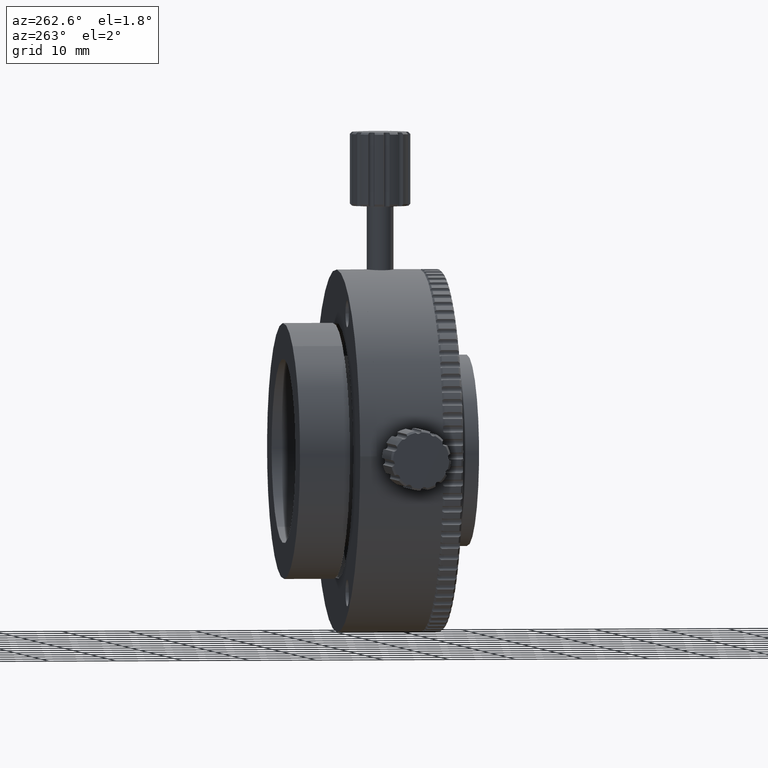
[diagram: clean part render]
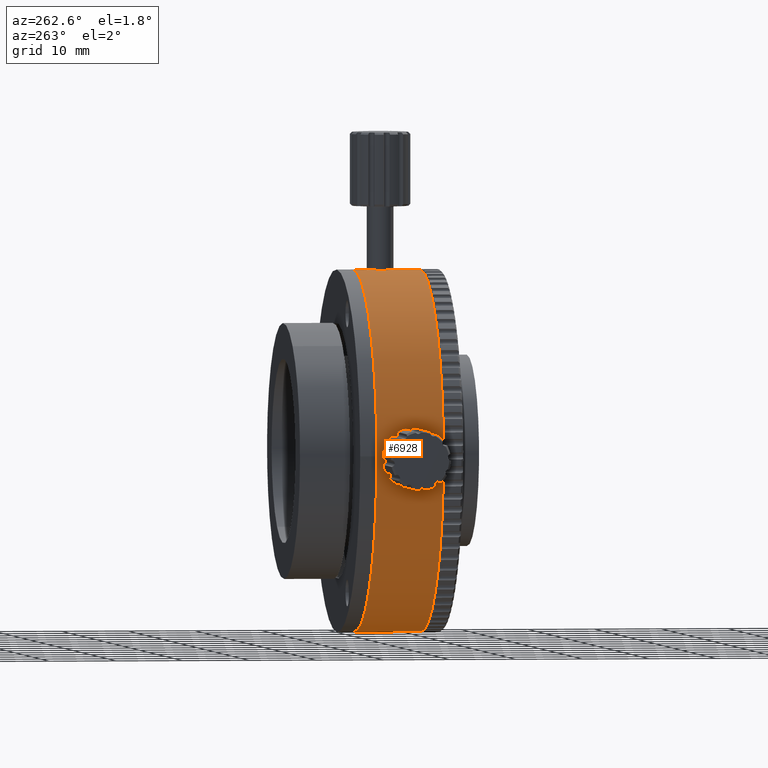
[diagram: same view with one face highlighted and labeled with its STEP entity id]
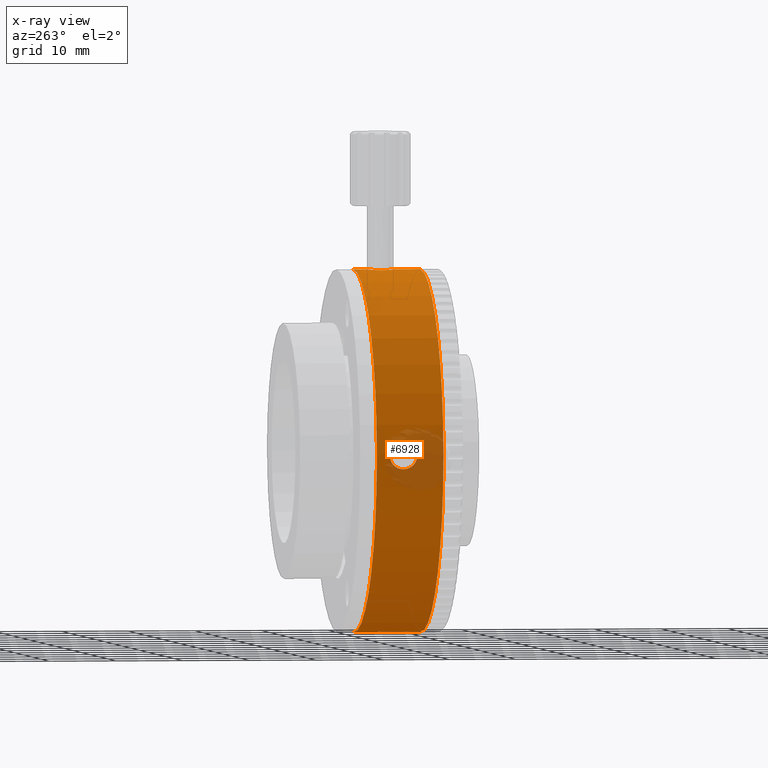
[diagram: x-ray of the same camera — body ghosted, the highlighted face saturated]
A machine part, auxiliary view. The second image highlights one B-rep face of the part: STEP entity #6928.
The next image is the same camera in x-ray: the body ghosted, the highlighted face saturated — about 10% of this face is hidden behind the body in this view.
In plain terms, the highlighted cylindrical surface (partial cylindrical patch) has radius 27 mm, axis along (-0, 1, -0).
Its self-contained STEP definition (entity closure, byte-faithful):
#1 = ORIENTED_EDGE ( 'NONE', *, *, #9798, .F. ) ;
#149 = CARTESIAN_POINT ( 'NONE',  ( -17.64702622034220525, 12.09499173005971251, 76.58632393384596071 ) ) ;
#271 = CARTESIAN_POINT ( 'NONE',  ( -17.63306146349438919, 8.255640410018482811, 75.57703044670600434 ) ) ;
#371 = CARTESIAN_POINT ( 'NONE',  ( 9.352963249104790933, 14.07014266807713199, 103.4537357609061559 ) ) ;
#392 = CARTESIAN_POINT ( 'NONE',  ( -17.61572663460999877, 8.555533150854472524, 75.15068692570514486 ) ) ;
#606 = CIRCLE ( 'NONE', #20805, 26.99999999999999645 ) ;
#623 = CARTESIAN_POINT ( 'NONE',  ( -17.62895741459088228, 8.321618794710673228, 77.44732424344488209 ) ) ;
#671 = CARTESIAN_POINT ( 'NONE',  ( 8.047621447926783134, 11.58252613100681927, 103.4223117652063308 ) ) ;
#746 = CARTESIAN_POINT ( 'NONE',  ( -17.58056641052543512, 9.553298796966751993, 78.34729480646575439 ) ) ;
#749 = DIRECTION ( 'NONE',  ( -0.000000000000000000, 1.000000000000000000, -0.000000000000000000 ) ) ;
#1183 = DIRECTION ( 'NONE',  ( 0.000000000000000000, 0.000000000000000000, 1.000000000000000000 ) ) ;
#1638 = CARTESIAN_POINT ( 'NONE',  ( 8.836905819048102018, 8.112423187109879308, 103.4491066711626104 ) ) ;
#1750 = CARTESIAN_POINT ( 'NONE',  ( 9.223429704356808756, 8.045142668077135184, 103.4537357609061843 ) ) ;
#1947 = CARTESIAN_POINT ( 'NONE',  ( 8.472694564413819407, 11.88289858600829163, 103.4396499460739847 ) ) ;
#2068 = CARTESIAN_POINT ( 'NONE',  ( 7.398775544753896760, 10.07014266807712843, 103.3829234652570506 ) ) ;
#2147 = CARTESIAN_POINT ( 'NONE',  ( -17.59271011028185328, 9.064246826993766604, 78.16833192886973336 ) ) ;
#2252 = B_SPLINE_CURVE_WITH_KNOTS ( 'NONE', 3,
 ( #14132, #19856, #14359, #19403, #21259, #19627, #16248, #5248, #5601, #8745, #21143, #17645, #15785, #3847, #1638, #22870, #1750, #6887 ),
 .UNSPECIFIED., .F., .F.,
 ( 4, 2, 2, 2, 2, 2, 2, 2, 4 ),
 ( 0.01093846651742600047, 0.01132823273131516179, 0.01171799894520432310, 0.01210776515909348441, 0.01249753137298264573, 0.01288729758687180704, 0.01327706380076096836, 0.01366683001465012967, 0.01405659622853929099 ),
 .UNSPECIFIED. ) ;
#2420 = CARTESIAN_POINT ( 'NONE',  ( 7.448047341056914128, 10.59146278588555923, 103.3866211215793669 ) ) ;
#2493 = CARTESIAN_POINT ( 'NONE',  ( -17.62031386946853573, 8.471282936468039537, 77.65938175341388217 ) ) ;
#2619 = CARTESIAN_POINT ( 'NONE',  ( -17.64703420778803533, 8.045179119281156588, 76.58382031334988937 ) ) ;
#3197 = CARTESIAN_POINT ( 'NONE',  ( -17.64608480814147384, 12.08162670635805469, 76.19385433333690116 ) ) ;
#3268 = ORIENTED_EDGE ( 'NONE', *, *, #7074, .F. ) ;
#3314 = CARTESIAN_POINT ( 'NONE',  ( -17.57710269788503865, 10.32924944703174752, 78.39593351960775180 ) ) ;
#3383 = VECTOR ( 'NONE', #6238, 1000.000000000000000 ) ;
#3421 = CARTESIAN_POINT ( 'NONE',  ( -17.60640186435709964, 11.39450773820317941, 74.97027276310427624 ) ) ;
#3607 = VERTEX_POINT ( 'NONE', #16015 ) ;
#3651 = CARTESIAN_POINT ( 'NONE',  ( -17.59266858345749185, 11.07444669520516989, 78.16894876598736630 ) ) ;
#3696 = CARTESIAN_POINT ( 'NONE',  ( 8.837341111493866919, 12.02791136276595196, 103.4491101502820385 ) ) ;
#3847 = CARTESIAN_POINT ( 'NONE',  ( 8.713611123656759716, 8.152041904480007872, 103.4464266951772373 ) ) ;
#3848 = VERTEX_POINT ( 'NONE', #8041 ) ;
#3884 = CARTESIAN_POINT ( 'NONE',  ( -17.60171694560570543, 8.841367161872854652, 78.02783478019213703 ) ) ;
#3982 = VERTEX_POINT ( 'NONE', #7642 ) ;
#4804 = DIRECTION ( 'NONE',  ( -0.000000000000000000, 1.000000000000000000, -0.000000000000000000 ) ) ;
#5167 = CARTESIAN_POINT ( 'NONE',  ( -17.64244457731922822, 12.02840541877076852, 75.93983826243660928 ) ) ;
#5207 = EDGE_CURVE ( 'NONE', #3848, #13286, #14652, .T. ) ;
#5248 = CARTESIAN_POINT ( 'NONE',  ( 7.789139572329929706, 8.849127152528515339, 103.4085003841402965 ) ) ;
#5280 = CARTESIAN_POINT ( 'NONE',  ( -17.58948947741601287, 10.95398813999963217, 74.69120864829946527 ) ) ;
#5496 = B_SPLINE_CURVE_WITH_KNOTS ( 'NONE', 3,
 ( #21439, #12589, #19708, #3696, #17959, #1947, #9048, #11296, #671, #18308, #18420, #5676, #16328, #2420, #13167, #22028 ),
 .UNSPECIFIED., .F., .F.,
 ( 4, 2, 2, 2, 2, 2, 2, 4 ),
 ( 0.007819380368100588979, 0.008209266136766264765, 0.008599151905431942286, 0.008989037674097618072, 0.009378923442763295593, 0.009768809211428971379, 0.01015869498009464716, 0.01093846651742600047 ),
 .UNSPECIFIED. ) ;
#5601 = CARTESIAN_POINT ( 'NONE',  ( 7.869217896915341903, 8.746010246381398900, 103.4130878537585403 ) ) ;
#5676 = CARTESIAN_POINT ( 'NONE',  ( 7.649574671091281530, 11.07090677270162793, 103.4000409973391754 ) ) ;
#5751 = CARTESIAN_POINT ( 'NONE',  ( -17.57622445524609134, 10.07014266807712843, 74.49954805655517021 ) ) ;
#5934 = DIRECTION ( 'NONE',  ( -0.000000000000000000, 1.000000000000000000, -0.000000000000000000 ) ) ;
#6059 = VERTEX_POINT ( 'NONE', #22373 ) ;
#6238 = DIRECTION ( 'NONE',  ( -0.000000000000000000, 1.000000000000000000, -0.000000000000000000 ) ) ;
#6339 = CARTESIAN_POINT ( 'NONE',  ( 9.352963249104794485, 108.6097110134007835, 49.45373576090617718 ) ) ;
#6437 = EDGE_LOOP ( 'NONE', ( #16562, #11648 ) ) ;
#6554 = DIRECTION ( 'NONE',  ( -0.000000000000000000, 1.000000000000000000, -0.000000000000000000 ) ) ;
#6887 = CARTESIAN_POINT ( 'NONE',  ( 9.352963249104790933, 8.045142668077135184, 103.4537357609061559 ) ) ;
#6923 = CARTESIAN_POINT ( 'NONE',  ( -17.62901781935710588, 11.81966654402616435, 75.46177111226572265 ) ) ;
#6928 = ADVANCED_FACE ( 'NONE', ( #8069, #10400 ), #15218, .T. ) ;
#7074 = EDGE_CURVE ( 'NONE', #21509, #13286, #2252, .T. ) ;
#7508 = CARTESIAN_POINT ( 'NONE',  ( -17.58056920009981283, 9.552989911600672457, 74.56021514799572003 ) ) ;
#7642 = CARTESIAN_POINT ( 'NONE',  ( -17.57622445524609134, 10.07014266807712843, 74.49954805655517021 ) ) ;
#7706 = CARTESIAN_POINT ( 'NONE',  ( 9.352963249104790933, 4.070142668077137316, 76.45373576090617007 ) ) ;
#7753 = AXIS2_PLACEMENT_3D ( 'NONE', #22215, #749, #11378 ) ;
#7866 = CARTESIAN_POINT ( 'NONE',  ( -17.59335345374037374, 9.069067794655811809, 74.75053299654189232 ) ) ;
#8021 = CARTESIAN_POINT ( 'NONE',  ( 9.352963249104790933, 108.6097110134007835, 103.4537357609061559 ) ) ;
#8041 = CARTESIAN_POINT ( 'NONE',  ( 9.352963249104790933, 4.070142668077137316, 103.4537357609061559 ) ) ;
#8069 = FACE_OUTER_BOUND ( 'NONE', #12085, .T. ) ;
#8078 = LINE ( 'NONE', #6339, #10190 ) ;
#8249 = LINE ( 'NONE', #8021, #17017 ) ;
#8433 = EDGE_CURVE ( 'NONE', #19495, #3848, #606, .T. ) ;
#8669 = CARTESIAN_POINT ( 'NONE',  ( -17.60178341104112221, 11.30015839579444048, 78.02644226289527296 ) ) ;
#8745 = CARTESIAN_POINT ( 'NONE',  ( 8.049703750713037564, 8.555729645818306750, 103.4224153766451622 ) ) ;
#8894 = CARTESIAN_POINT ( 'NONE',  ( -17.58053636419039734, 10.58543259738809184, 78.34772166997586851 ) ) ;
#9048 = CARTESIAN_POINT ( 'NONE',  ( 8.359777557939574777, 11.81891524486320222, 103.4356714348146653 ) ) ;
#9251 = CARTESIAN_POINT ( 'NONE',  ( -17.62901508228138425, 8.320658849020563963, 75.46168123660530114 ) ) ;
#9316 = AXIS2_PLACEMENT_3D ( 'NONE', #22655, #6554, #1183 ) ;
#9374 = CARTESIAN_POINT ( 'NONE',  ( -17.64703928364118468, 8.045106365383368541, 76.32470903997410971 ) ) ;
#9607 = ORIENTED_EDGE ( 'NONE', *, *, #5207, .T. ) ;
#9798 = EDGE_CURVE ( 'NONE', #19495, #6059, #8078, .T. ) ;
#10190 = VECTOR ( 'NONE', #4804, 1000.000000000000000 ) ;
#10400 = FACE_BOUND ( 'NONE', #6437, .T. ) ;
#10543 = CARTESIAN_POINT ( 'NONE',  ( -17.60184147355056439, 11.29212972605029996, 74.89059360986723846 ) ) ;
#10662 = CARTESIAN_POINT ( 'NONE',  ( -17.57622445524609134, 10.32953574930870921, 74.49954805655517021 ) ) ;
#11140 = CARTESIAN_POINT ( 'NONE',  ( -17.64239538185961109, 8.112604573030683497, 76.97043344162263168 ) ) ;
#11257 = CARTESIAN_POINT ( 'NONE',  ( -17.58946648400573309, 9.187046596976022883, 74.69085847574800141 ) ) ;
#11296 = CARTESIAN_POINT ( 'NONE',  ( 8.147628117173203677, 11.66925725197649655, 103.4270269532653685 ) ) ;
#11378 = DIRECTION ( 'NONE',  ( 0.000000000000000000, 0.000000000000000000, 1.000000000000000000 ) ) ;
#11487 = CARTESIAN_POINT ( 'NONE',  ( -17.63973712892519785, 8.151899520193106596, 75.81477699943526716 ) ) ;
#11648 = ORIENTED_EDGE ( 'NONE', *, *, #14344, .F. ) ;
#11878 = ORIENTED_EDGE ( 'NONE', *, *, #20384, .F. ) ;
#12048 = ORIENTED_EDGE ( 'NONE', *, *, #16744, .F. ) ;
#12085 = EDGE_LOOP ( 'NONE', ( #1, #19781, #9607, #3268, #11878, #21684, #12048 ) ) ;
#12589 = CARTESIAN_POINT ( 'NONE',  ( 9.222610526826452215, 12.09514266807712346, 103.4537357609061559 ) ) ;
#12780 = CARTESIAN_POINT ( 'NONE',  ( -17.62035585593246978, 8.470517798672103638, 75.24900205073997483 ) ) ;
#12890 = CARTESIAN_POINT ( 'NONE',  ( -17.60180892100918015, 8.848947312061079984, 74.89004117313656650 ) ) ;
#13013 = CARTESIAN_POINT ( 'NONE',  ( -17.57711719243554072, 9.809375439857699774, 74.51173732732264909 ) ) ;
#13118 = EDGE_CURVE ( 'NONE', #3607, #3982, #14995, .T. ) ;
#13167 = CARTESIAN_POINT ( 'NONE',  ( 7.398775544753898536, 10.32935659784725679, 103.3829234652570364 ) ) ;
#13286 = VERTEX_POINT ( 'NONE', #22092 ) ;
#14057 = CARTESIAN_POINT ( 'NONE',  ( -17.61565465495326777, 11.58332957555449916, 75.14925190446615488 ) ) ;
#14120 = EDGE_CURVE ( 'NONE', #14391, #18422, #8249, .T. ) ;
#14132 = CARTESIAN_POINT ( 'NONE',  ( 7.398775544753896760, 10.07014266807712843, 103.3829234652570506 ) ) ;
#14168 = CARTESIAN_POINT ( 'NONE',  ( -17.58311274167399318, 10.71244267466998679, 78.31117158649716714 ) ) ;
#14293 = CARTESIAN_POINT ( 'NONE',  ( 9.352963249104794485, 4.070142668077137316, 49.45373576090617718 ) ) ;
#14344 = EDGE_CURVE ( 'NONE', #3982, #3607, #22159, .T. ) ;
#14359 = CARTESIAN_POINT ( 'NONE',  ( 7.410960559162220740, 9.809420336460318524, 103.3838158881724354 ) ) ;
#14391 = VERTEX_POINT ( 'NONE', #20135 ) ;
#14637 = CARTESIAN_POINT ( 'NONE',  ( -17.57622445524611621, 9.940212862003832583, 78.40792346525688572 ) ) ;
#14652 = LINE ( 'NONE', #21767, #3383 ) ;
#14841 = DIRECTION ( 'NONE',  ( 0.000000000000000000, 0.000000000000000000, 1.000000000000000000 ) ) ;
#14995 = B_SPLINE_CURVE_WITH_KNOTS ( 'NONE', 3,
 ( #19436, #23021, #3314, #8894, #14168, #3651, #8669, #16161, #17571, #15715, #15820, #19208, #149, #22905, #3197, #5167, #22799, #21399, #6923, #17914, #14057, #3421, #10543, #17679, #5280, #19543, #10662, #17794 ),
 .UNSPECIFIED., .F., .F.,
 ( 4, 2, 2, 2, 2, 2, 2, 2, 2, 2, 2, 2, 2, 4 ),
 ( 0.004695982808176745599, 0.005086138040004835846, 0.005476293271832926093, 0.006256603735489107455, 0.007036914199145288817, 0.007427069430973360850, 0.007817224662801434618, 0.008207379894629506650, 0.008597535126457578683, 0.008987690358285650716, 0.009377845590113722749, 0.009768000821941794781, 0.01015815605376986855, 0.01093846651742599353 ),
 .UNSPECIFIED. ) ;
#15218 = CYLINDRICAL_SURFACE ( 'NONE', #9316, 26.99999999999999645 ) ;
#15715 = CARTESIAN_POINT ( 'NONE',  ( -17.63965171565371648, 11.98709931655587901, 77.09626520691965368 ) ) ;
#15785 = CARTESIAN_POINT ( 'NONE',  ( 8.475923369911505745, 8.255815747838509466, 103.4397494728958975 ) ) ;
#15820 = CARTESIAN_POINT ( 'NONE',  ( -17.64239856376486770, 12.02772678488805447, 76.97015351095851088 ) ) ;
#16015 = CARTESIAN_POINT ( 'NONE',  ( -17.57622445524602384, 10.07014266807589742, 78.40792346525842049 ) ) ;
#16161 = CARTESIAN_POINT ( 'NONE',  ( -17.62019859201290117, 11.67615785787208793, 77.67041712713097468 ) ) ;
#16248 = CARTESIAN_POINT ( 'NONE',  ( 7.649676009424124068, 9.069224959368435535, 103.4000470662618056 ) ) ;
#16328 = CARTESIAN_POINT ( 'NONE',  ( 7.590175264902458530, 10.95341623767273909, 103.3961713067087231 ) ) ;
#16406 = CARTESIAN_POINT ( 'NONE',  ( -17.64241592196053077, 8.112301110346150423, 75.93810248876174285 ) ) ;
#16485 = DIRECTION ( 'NONE',  ( -0.000000000000000000, 1.000000000000000000, -0.000000000000000000 ) ) ;
#16518 = CARTESIAN_POINT ( 'NONE',  ( -17.57622445524609134, 9.940553402058112553, 74.49954805655519863 ) ) ;
#16562 = ORIENTED_EDGE ( 'NONE', *, *, #13118, .F. ) ;
#16744 = EDGE_CURVE ( 'NONE', #6059, #18422, #18951, .T. ) ;
#17017 = VECTOR ( 'NONE', #5934, 1000.000000000000000 ) ;
#17571 = CARTESIAN_POINT ( 'NONE',  ( -17.62960555423194009, 11.83085609411661565, 77.45243875579011217 ) ) ;
#17645 = CARTESIAN_POINT ( 'NONE',  ( 8.360605537193929848, 8.320845483943234200, 103.4357028175728175 ) ) ;
#17679 = CARTESIAN_POINT ( 'NONE',  ( -17.59336406897872607, 11.07154933963422749, 74.75069287021214848 ) ) ;
#17794 = CARTESIAN_POINT ( 'NONE',  ( -17.57622445524609134, 10.07014266807712843, 74.49954805655517021 ) ) ;
#17914 = CARTESIAN_POINT ( 'NONE',  ( -17.62037214133870222, 11.67005667281796022, 75.24937943587738687 ) ) ;
#17959 = CARTESIAN_POINT ( 'NONE',  ( 8.712910489458785435, 11.98809623425522020, 103.4464156914235531 ) ) ;
#18146 = CARTESIAN_POINT ( 'NONE',  ( -17.58308965573528582, 9.428726556136831860, 78.31151457178545172 ) ) ;
#18308 = CARTESIAN_POINT ( 'NONE',  ( 7.868875292780542097, 11.39374588255110687, 103.4130660911556561 ) ) ;
#18380 = CARTESIAN_POINT ( 'NONE',  ( -17.57712832792579505, 9.808446938074830257, 78.39557855525077912 ) ) ;
#18420 = CARTESIAN_POINT ( 'NONE',  ( 7.789297428491504860, 11.29140098013372651, 103.4085098787534491 ) ) ;
#18422 = VERTEX_POINT ( 'NONE', #371 ) ;
#18495 = CARTESIAN_POINT ( 'NONE',  ( -17.64607943594618078, 8.058731849379459078, 76.71461542365859998 ) ) ;
#18618 = CARTESIAN_POINT ( 'NONE',  ( -17.64609065282499856, 8.058570949757491775, 76.19400000745680757 ) ) ;
#18951 = CIRCLE ( 'NONE', #7753, 26.99999999999999645 ) ;
#19208 = CARTESIAN_POINT ( 'NONE',  ( -17.64607107533994679, 12.08143173502458900, 76.71525487639429741 ) ) ;
#19403 = CARTESIAN_POINT ( 'NONE',  ( 7.459422155518850239, 9.553075853624747538, 103.3872667629048863 ) ) ;
#19436 = CARTESIAN_POINT ( 'NONE',  ( -17.57622445524602384, 10.07014266807589742, 78.40792346525842049 ) ) ;
#19495 = VERTEX_POINT ( 'NONE', #14293 ) ;
#19543 = CARTESIAN_POINT ( 'NONE',  ( -17.57992736389598321, 10.59181985723011010, 74.54888768243296227 ) ) ;
#19627 = CARTESIAN_POINT ( 'NONE',  ( 7.590021613791777533, 9.187187826884498421, 103.3961612552000702 ) ) ;
#19708 = CARTESIAN_POINT ( 'NONE',  ( 9.091122695494158634, 12.08134702989930709, 103.4527643385393390 ) ) ;
#19781 = ORIENTED_EDGE ( 'NONE', *, *, #8433, .T. ) ;
#19856 = CARTESIAN_POINT ( 'NONE',  ( 7.398775544753895872, 9.940575445939726862, 103.3829234652570221 ) ) ;
#19895 = CARTESIAN_POINT ( 'NONE',  ( -17.57622445524602384, 10.07014266807589742, 78.40792346525842049 ) ) ;
#20135 = CARTESIAN_POINT ( 'NONE',  ( 9.352963249104787380, 12.09514266807717142, 103.4537357609061559 ) ) ;
#20243 = CARTESIAN_POINT ( 'NONE',  ( -17.58309701968739702, 9.428535954966175581, 74.59607232472626492 ) ) ;
#20354 = CARTESIAN_POINT ( 'NONE',  ( -17.60639761890047694, 8.745818289739895945, 74.97014825099452651 ) ) ;
#20384 = EDGE_CURVE ( 'NONE', #14391, #21509, #5496, .T. ) ;
#20805 = AXIS2_PLACEMENT_3D ( 'NONE', #7706, #16485, #14841 ) ;
#21143 = CARTESIAN_POINT ( 'NONE',  ( 8.147990092376309335, 8.470713586032003306, 103.4270440445965136 ) ) ;
#21259 = CARTESIAN_POINT ( 'NONE',  ( 7.495267429140077375, 9.428641200053816007, 103.3897937680754069 ) ) ;
#21399 = CARTESIAN_POINT ( 'NONE',  ( -17.63299561735048115, 11.88361146376673005, 75.57481832809429534 ) ) ;
#21439 = CARTESIAN_POINT ( 'NONE',  ( 9.352963249104787380, 12.09514266807717142, 103.4537357609061559 ) ) ;
#21509 = VERTEX_POINT ( 'NONE', #2068 ) ;
#21684 = ORIENTED_EDGE ( 'NONE', *, *, #14120, .T. ) ;
#21767 = CARTESIAN_POINT ( 'NONE',  ( 9.352963249104790933, 108.6097110134007835, 103.4537357609061559 ) ) ;
#21867 = CARTESIAN_POINT ( 'NONE',  ( -17.63301025200811978, 8.256453114652979153, 77.33204542145709581 ) ) ;
#21986 = CARTESIAN_POINT ( 'NONE',  ( -17.61569254222455783, 8.556190423601341521, 77.75747953911050558 ) ) ;
#22028 = CARTESIAN_POINT ( 'NONE',  ( 7.398775544753896760, 10.07014266807712843, 103.3829234652570506 ) ) ;
#22092 = CARTESIAN_POINT ( 'NONE',  ( 9.352963249104790933, 8.045142668077135184, 103.4537357609061559 ) ) ;
#22095 = CARTESIAN_POINT ( 'NONE',  ( -17.63971034588647413, 8.152299057947075767, 77.09386532345348542 ) ) ;
#22159 = B_SPLINE_CURVE_WITH_KNOTS ( 'NONE', 3,
 ( #5751, #16518, #13013, #7508, #20243, #11257, #7866, #12890, #20354, #392, #12780, #9251, #271, #11487, #16406, #18618, #9374, #2619, #18495, #11140, #22095, #21867, #623, #2493, #21986, #3884, #2147, #18146, #746, #18380, #14637, #19895 ),
 .UNSPECIFIED., .F., .F.,
 ( 4, 2, 2, 2, 2, 2, 2, 2, 2, 2, 2, 2, 2, 2, 2, 4 ),
 ( 0.01093846651742599353, 0.01132829904407646991, 0.01171813157072694456, 0.01210796409737742094, 0.01249779662402789558, 0.01288762915067837196, 0.01327746167732884661, 0.01366729420397932299, 0.01405712673062979937, 0.01444695925728027575, 0.01483679178393075039, 0.01522662431058122504, 0.01561645683723170142, 0.01639612189053268193, 0.01678595441718317219, 0.01717578694383366245 ),
 .UNSPECIFIED. ) ;
#22215 = CARTESIAN_POINT ( 'NONE',  ( 9.352963249104790933, 14.07014266807713199, 76.45373576090617007 ) ) ;
#22373 = CARTESIAN_POINT ( 'NONE',  ( 9.352963249104794485, 14.07014266807713199, 49.45373576090617718 ) ) ;
#22655 = CARTESIAN_POINT ( 'NONE',  ( 9.352963249104790933, 108.6097110134007835, 76.45373576090617007 ) ) ;
#22799 = CARTESIAN_POINT ( 'NONE',  ( -17.63975610702292585, 11.98869087104549536, 75.81532088244173906 ) ) ;
#22870 = CARTESIAN_POINT ( 'NONE',  ( 9.092737570771120659, 8.058640918424838873, 103.4527847895251682 ) ) ;
#22905 = CARTESIAN_POINT ( 'NONE',  ( -17.64704710832015522, 12.09529112459197542, 76.32547168644288149 ) ) ;
#23021 = CARTESIAN_POINT ( 'NONE',  ( -17.57622445524610200, 10.20018003064514289, 78.40792346525711309 ) ) ;